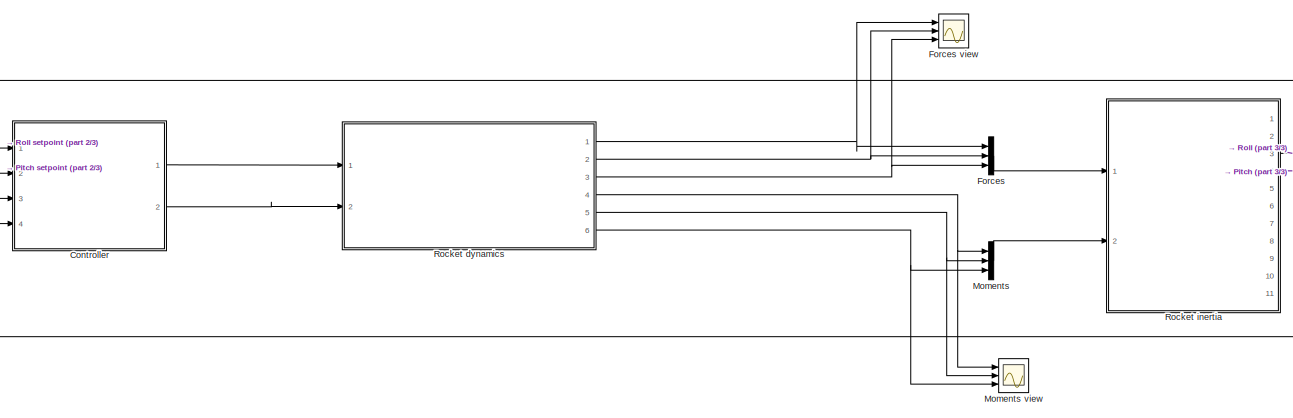
[diagram: root canvas - part 1/3, center side, full height]
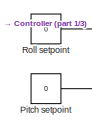
[diagram: root canvas - part 2/3, middle left region]
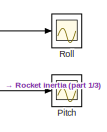
[diagram: root canvas - part 3/3, middle right region]
MODEL slx_205edbc6a3b7
KIND model
CONFIG AbsTol = auto
CONFIG EnableMultiTasking = off
CONFIG FixedStep = auto
CONFIG MaxStep = auto
CONFIG MinStep = auto
CONFIG RelTol = 1e-3
CONFIG SampleTimeConstraint = Unconstrained
CONFIG SolverName = VariableStepAuto
CONFIG StartTime = 0.0
CONFIG StopTime = 10.0
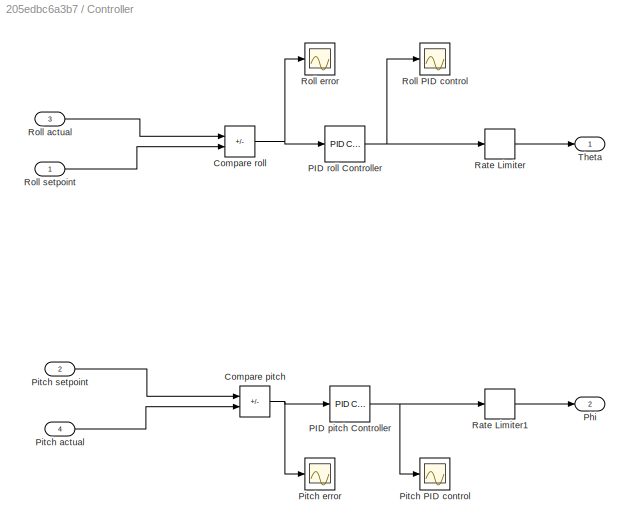
BLOCK [SubSystem] Controller
  Ports = [4, 2]
  RequestExecContextInheritance = off
BLOCK [Sum] Controller/Compare pitch
  IconShape = rectangular
  Inputs = +-
  Ports = [2, 1]
BLOCK [Sum] Controller/Compare roll
  IconShape = rectangular
  Inputs = +-
  Ports = [2, 1]
BLOCK [Reference] Controller/PID pitch Controller  REF=pid_lib/PID Controller
  Ports = [1, 1]
  SourceBlock = pid_lib/PID Controller
  SourceProductBaseCode = SL
  SourceType = PID 1dof
BLOCK [Reference] Controller/PID roll Controller  REF=pid_lib/PID Controller
  Ports = [1, 1]
  SourceBlock = pid_lib/PID Controller
  SourceProductBaseCode = SL
  SourceType = PID 1dof
BLOCK [Outport] Controller/Phi
  Port = 2
BLOCK [Scope] Controller/Pitch PID control
  Floating = off
  NumInputPorts = 1
  Ports = [1]
  ScopeSpecificationString = Simulink.scopes.TimeScopeBlockCfg('CurrentConfiguration', extmgr.ConfigurationSet(extmgr.Configuration('Core','General UI',true),extmgr.Configuration('Core','Source UI',true),extmgr.Configuration('Sources','WiredSimulink',true,'DataLoggingVariableName','ScopeData4'),extmgr.Configuration('Visuals','Time Domain',true,'SerializedDisplays',{struct('MinYLimReal','-0.58531','MaxYLimReal','0.07842','YLab...<+1410ch>
BLOCK [Inport] Controller/Pitch actual
  Port = 4
BLOCK [Scope] Controller/Pitch error
  Floating = off
  NumInputPorts = 1
  Ports = [1]
  ScopeSpecificationString = Simulink.scopes.TimeScopeBlockCfg('CurrentConfiguration', extmgr.ConfigurationSet(extmgr.Configuration('Core','General UI',true),extmgr.Configuration('Core','Source UI',true),extmgr.Configuration('Sources','WiredSimulink',true,'DataLoggingVariableName','ScopeData2'),extmgr.Configuration('Visuals','Time Domain',true,'SerializedDisplays',{struct('MinYLimReal','-0.0968','MaxYLimReal','0.03418','YLabe...<+1399ch>
BLOCK [Inport] Controller/Pitch setpoint
  Port = 2
BLOCK [RateLimiter] Controller/Rate Limiter
  FallingSlewLimit = -500
  RisingSlewLimit = 500
  SampleTimeMode = inherited
BLOCK [RateLimiter] Controller/Rate Limiter1
  FallingSlewLimit = -500
  RisingSlewLimit = 500
  SampleTimeMode = inherited
BLOCK [Scope] Controller/Roll PID control
  Floating = off
  NumInputPorts = 1
  Ports = [1]
  ScopeSpecificationString = Simulink.scopes.TimeScopeBlockCfg('CurrentConfiguration', extmgr.ConfigurationSet(extmgr.Configuration('Core','General UI',true),extmgr.Configuration('Core','Source UI',true),extmgr.Configuration('Sources','WiredSimulink',true,'DataLoggingVariableName','ScopeData3'),extmgr.Configuration('Visuals','Time Domain',true,'SerializedDisplays',{struct('MinYLimReal','-22.84111','MaxYLimReal','10.79129','YL...<+1465ch>
BLOCK [Inport] Controller/Roll actual
  Port = 3
BLOCK [Scope] Controller/Roll error
  Floating = off
  NumInputPorts = 1
  Ports = [1]
  ScopeSpecificationString = Simulink.scopes.TimeScopeBlockCfg('CurrentConfiguration', extmgr.ConfigurationSet(extmgr.Configuration('Core','General UI',true),extmgr.Configuration('Core','Source UI',true),extmgr.Configuration('Sources','WiredSimulink',true,'DataLoggingVariableName','ScopeData1'),extmgr.Configuration('Visuals','Time Domain',true,'SerializedDisplays',{struct('MinYLimReal','-3.53429','MaxYLimReal','0.3927','YLabe...<+1450ch>
BLOCK [Inport] Controller/Roll setpoint
BLOCK [Outport] Controller/Theta
BLOCK [Mux] Forces
  DisplayOption = bar
  Inputs = 3
  Ports = [3, 1]
BLOCK [Scope] Forces view
  Floating = off
  NumInputPorts = 3
  Ports = [3]
  ScopeSpecificationString = Simulink.scopes.TimeScopeBlockCfg('CurrentConfiguration', extmgr.ConfigurationSet(extmgr.Configuration('Core','General UI',true),extmgr.Configuration('Core','Source UI',true),extmgr.Configuration('Sources','WiredSimulink',true,'DataLoggingVariableName','ScopeData5'),extmgr.Configuration('Visuals','Time Domain',true,'SerializedDisplays',{struct('MinYLimReal','-7.64555','MaxYLimReal','17.51617','YLa...<+1788ch>
BLOCK [Mux] Moments
  DisplayOption = bar
  Inputs = 3
  Ports = [3, 1]
BLOCK [Scope] Moments view
  Floating = off
  NumInputPorts = 3
  Ports = [3]
  ScopeSpecificationString = Simulink.scopes.TimeScopeBlockCfg('CurrentConfiguration', extmgr.ConfigurationSet(extmgr.Configuration('Core','General UI',true),extmgr.Configuration('Core','Source UI',true),extmgr.Configuration('Sources','WiredSimulink',true,'DataLoggingVariableName','ScopeData6'),extmgr.Configuration('Visuals','Time Domain',true,'SerializedDisplays',{struct('MinYLimReal','-2.92054','MaxYLimReal','0.63796','YLab...<+1829ch>
BLOCK [Scope] Pitch
  Floating = off
  NumInputPorts = 1
  Ports = [1]
  ScopeSpecificationString = Simulink.scopes.TimeScopeBlockCfg('CurrentConfiguration', extmgr.ConfigurationSet(extmgr.Configuration('Core','General UI',true),extmgr.Configuration('Core','Source UI',true),extmgr.Configuration('Sources','WiredSimulink',true,'DataLoggingVariableName','ScopeData1'),extmgr.Configuration('Visuals','Time Domain',true,'SerializedDisplays',{struct('MinYLimReal','-0.0342','MaxYLimReal','0.0968','YLabel...<+1400ch>
BLOCK [Constant] Pitch setpoint
  Value = 0
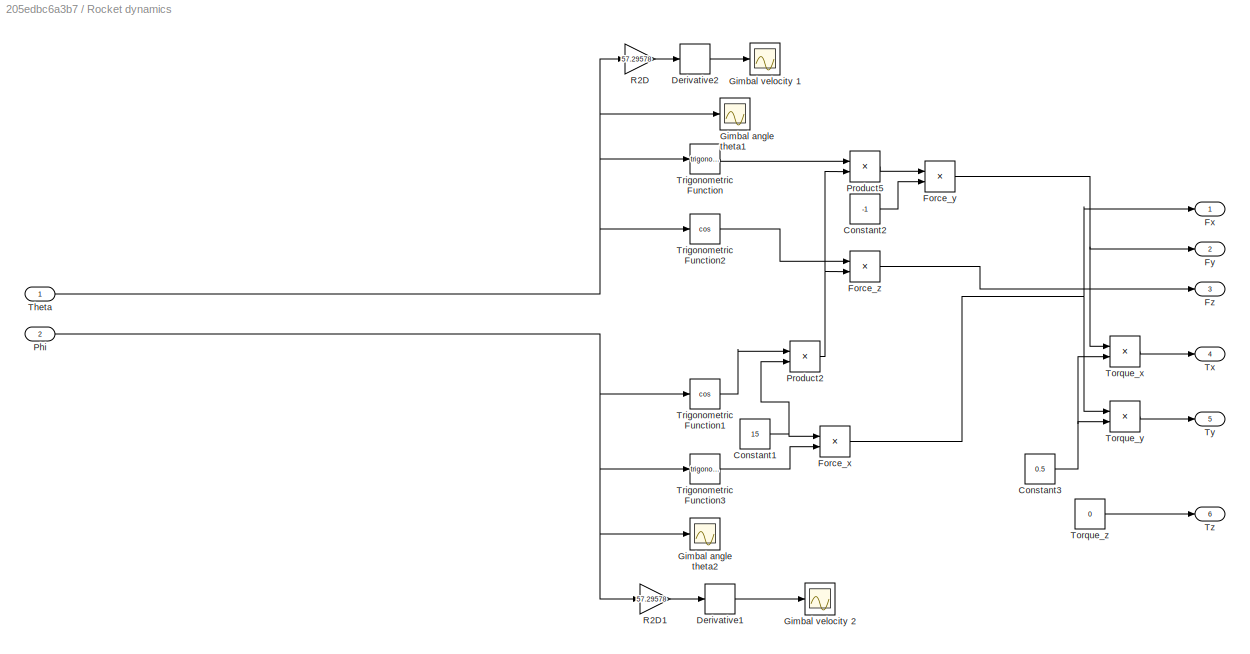
BLOCK [SubSystem] Rocket dynamics
  Ports = [2, 6]
  RequestExecContextInheritance = off
BLOCK [Constant] Rocket dynamics/Constant1
  Value = 15
BLOCK [Constant] Rocket dynamics/Constant2
  Value = -1
BLOCK [Constant] Rocket dynamics/Constant3
  Value = 0.5
BLOCK [Derivative] Rocket dynamics/Derivative1
BLOCK [Derivative] Rocket dynamics/Derivative2
BLOCK [Product] Rocket dynamics/Force_x
  Ports = [2, 1]
BLOCK [Product] Rocket dynamics/Force_y
  Ports = [2, 1]
BLOCK [Product] Rocket dynamics/Force_z
  Ports = [2, 1]
BLOCK [Outport] Rocket dynamics/Fx
BLOCK [Outport] Rocket dynamics/Fy
  Port = 2
BLOCK [Outport] Rocket dynamics/Fz
  Port = 3
BLOCK [Scope] Rocket dynamics/Gimbal angle theta1
  Floating = off
  NumInputPorts = 1
  Ports = [1]
  ScopeSpecificationString = Simulink.scopes.TimeScopeBlockCfg('CurrentConfiguration', extmgr.ConfigurationSet(extmgr.Configuration('Core','General UI',true),extmgr.Configuration('Core','Source UI',true),extmgr.Configuration('Sources','WiredSimulink',true,'DataLoggingVariableName','ScopeData2'),extmgr.Configuration('Visuals','Time Domain',true,'SerializedDisplays',{struct('MinYLimReal','-0.43625','MaxYLimReal','0.43625','YLab...<+1453ch>
BLOCK [Scope] Rocket dynamics/Gimbal angle theta2
  Floating = off
  NumInputPorts = 1
  Ports = [1]
  ScopeSpecificationString = Simulink.scopes.TimeScopeBlockCfg('CurrentConfiguration', extmgr.ConfigurationSet(extmgr.Configuration('Core','General UI',true),extmgr.Configuration('Core','Source UI',true),extmgr.Configuration('Sources','WiredSimulink',true,'DataLoggingVariableName','ScopeData3'),extmgr.Configuration('Visuals','Time Domain',true,'SerializedDisplays',{struct('MinYLimReal','-0.39413','MaxYLimReal','0.05718','YLab...<+1366ch>
BLOCK [Scope] Rocket dynamics/Gimbal velocity 1
  Floating = off
  NumInputPorts = 1
  Ports = [1]
  ScopeSpecificationString = Simulink.scopes.TimeScopeBlockCfg('CurrentConfiguration', extmgr.ConfigurationSet(extmgr.Configuration('Core','General UI',true),extmgr.Configuration('Core','Source UI',true),extmgr.Configuration('Sources','WiredSimulink',true,'DataLoggingVariableName','ScopeData7'),extmgr.Configuration('Visuals','Time Domain',true,'SerializedDisplays',{struct('MinYLimReal','-3761.43334','MaxYLimReal','22487.8052'...<+1464ch>
BLOCK [Scope] Rocket dynamics/Gimbal velocity 2
  Floating = off
  NumInputPorts = 1
  Ports = [1]
  ScopeSpecificationString = Simulink.scopes.TimeScopeBlockCfg('CurrentConfiguration', extmgr.ConfigurationSet(extmgr.Configuration('Core','General UI',true),extmgr.Configuration('Core','Source UI',true),extmgr.Configuration('Sources','WiredSimulink',true,'DataLoggingVariableName','ScopeData1'),extmgr.Configuration('Visuals','Time Domain',true,'SerializedDisplays',{struct('MinYLimReal','-22523.9109','MaxYLimReal','4086.38461'...<+1466ch>
BLOCK [Inport] Rocket dynamics/Phi
  Port = 2
BLOCK [Product] Rocket dynamics/Product2
  Ports = [2, 1]
BLOCK [Product] Rocket dynamics/Product5
  Ports = [2, 1]
BLOCK [Gain] Rocket dynamics/R2D
  Gain = 57.29578
BLOCK [Gain] Rocket dynamics/R2D1
  Gain = 57.29578
BLOCK [Inport] Rocket dynamics/Theta
BLOCK [Product] Rocket dynamics/Torque_x
  Ports = [2, 1]
BLOCK [Product] Rocket dynamics/Torque_y
  Ports = [2, 1]
BLOCK [Constant] Rocket dynamics/Torque_z
  Value = 0
BLOCK [Trigonometry] Rocket dynamics/Trigonometric Function
  Ports = [1, 1]
BLOCK [Trigonometry] Rocket dynamics/Trigonometric Function1
  Operator = cos
  Ports = [1, 1]
BLOCK [Trigonometry] Rocket dynamics/Trigonometric Function2
  Operator = cos
  Ports = [1, 1]
BLOCK [Trigonometry] Rocket dynamics/Trigonometric Function3
  Ports = [1, 1]
BLOCK [Outport] Rocket dynamics/Tx
  Port = 4
BLOCK [Outport] Rocket dynamics/Ty
  Port = 5
BLOCK [Outport] Rocket dynamics/Tz
  Port = 6
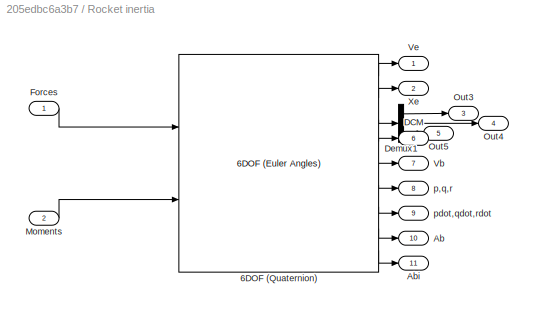
BLOCK [SubSystem] Rocket inertia
  Ports = [2, 11]
  RequestExecContextInheritance = off
BLOCK [Reference] Rocket inertia/6DOF (Quaternion)  REF=shared6dof/6DOF (Euler Angles)
  Ports = [2, 9]
  SourceBlock = shared6dof/6DOF (Euler Angles)
  SourceProductBaseCode = AE,PW,MT,UV,VE,VP
  SourceType = 6DOF EoM (Body Axis)
BLOCK [Outport] Rocket inertia/Ab
  Port = 10
BLOCK [Outport] Rocket inertia/Abi
  Port = 11
BLOCK [Outport] Rocket inertia/DCM
  Port = 6
BLOCK [Demux] Rocket inertia/Demux1
  Outputs = 3
  Ports = [1, 3]
BLOCK [Inport] Rocket inertia/Forces
BLOCK [Inport] Rocket inertia/Moments
  Port = 2
BLOCK [Outport] Rocket inertia/Out3
  Port = 3
BLOCK [Outport] Rocket inertia/Out4
  Port = 4
BLOCK [Outport] Rocket inertia/Out5
  Port = 5
BLOCK [Outport] Rocket inertia/Vb
  Port = 7
BLOCK [Outport] Rocket inertia/Ve
BLOCK [Outport] Rocket inertia/Xe
  Port = 2
BLOCK [Outport] Rocket inertia/p,q,r
  Port = 8
BLOCK [Outport] Rocket inertia/pdot,qdot,rdot
  Port = 9
BLOCK [Scope] Roll
  Floating = off
  NumInputPorts = 1
  Ports = [1]
  ScopeSpecificationString = Simulink.scopes.TimeScopeBlockCfg('CurrentConfiguration', extmgr.ConfigurationSet(extmgr.Configuration('Core','General UI',true),extmgr.Configuration('Core','Source UI',true),extmgr.Configuration('Sources','WiredSimulink',true),extmgr.Configuration('Visuals','Time Domain',true,'SerializedDisplays',{struct('MinYLimReal','-0.14763','MaxYLimReal','0.79196','YLabelReal','','MinYLimMag','0.00000','MaxY...<+1394ch>
BLOCK [Constant] Roll setpoint
  Value = 0
NET Controller/Compare pitch:1 -> Controller/PID pitch Controller:1, Controller/Pitch error:1
NET Controller/Compare roll:1 -> Controller/PID roll Controller:1, Controller/Roll error:1
NET Controller/PID pitch Controller:1 -> Controller/Pitch PID control:1, Controller/Rate Limiter1:1
NET Controller/PID roll Controller:1 -> Controller/Rate Limiter:1, Controller/Roll PID control:1
LINE Controller/Pitch actual:1 -> Controller/Compare pitch:2
LINE Controller/Pitch setpoint:1 -> Controller/Compare pitch:1
LINE Controller/Rate Limiter1:1 -> Controller/Phi:1
LINE Controller/Rate Limiter:1 -> Controller/Theta:1
LINE Controller/Roll actual:1 -> Controller/Compare roll:1
LINE Controller/Roll setpoint:1 -> Controller/Compare roll:2
LINE Controller:1 -> Rocket dynamics:1
LINE Controller:2 -> Rocket dynamics:2
LINE Forces:1 -> Rocket inertia:1
LINE Moments:1 -> Rocket inertia:2
LINE Pitch setpoint:1 -> Controller:2
NET Rocket dynamics/Constant1:1 -> Rocket dynamics/Force_x:1, Rocket dynamics/Product2:2
LINE Rocket dynamics/Constant2:1 -> Rocket dynamics/Force_y:2
NET Rocket dynamics/Constant3:1 -> Rocket dynamics/Torque_x:2, Rocket dynamics/Torque_y:2
LINE Rocket dynamics/Derivative1:1 -> Rocket dynamics/Gimbal velocity 2:1
LINE Rocket dynamics/Derivative2:1 -> Rocket dynamics/Gimbal velocity 1:1
NET Rocket dynamics/Force_x:1 -> Rocket dynamics/Fx:1, Rocket dynamics/Torque_y:1
NET Rocket dynamics/Force_y:1 -> Rocket dynamics/Fy:1, Rocket dynamics/Torque_x:1
LINE Rocket dynamics/Force_z:1 -> Rocket dynamics/Fz:1
NET Rocket dynamics/Phi:1 -> Rocket dynamics/Gimbal angle theta2:1, Rocket dynamics/R2D1:1, Rocket dynamics/Trigonometric Function1:1, Rocket dynamics/Trigonometric Function3:1
NET Rocket dynamics/Product2:1 -> Rocket dynamics/Force_z:2, Rocket dynamics/Product5:2
LINE Rocket dynamics/Product5:1 -> Rocket dynamics/Force_y:1
LINE Rocket dynamics/R2D1:1 -> Rocket dynamics/Derivative1:1
LINE Rocket dynamics/R2D:1 -> Rocket dynamics/Derivative2:1
NET Rocket dynamics/Theta:1 -> Rocket dynamics/Gimbal angle theta1:1, Rocket dynamics/R2D:1, Rocket dynamics/Trigonometric Function2:1, Rocket dynamics/Trigonometric Function:1
LINE Rocket dynamics/Torque_x:1 -> Rocket dynamics/Tx:1
LINE Rocket dynamics/Torque_y:1 -> Rocket dynamics/Ty:1
LINE Rocket dynamics/Torque_z:1 -> Rocket dynamics/Tz:1
LINE Rocket dynamics/Trigonometric Function1:1 -> Rocket dynamics/Product2:1
LINE Rocket dynamics/Trigonometric Function2:1 -> Rocket dynamics/Force_z:1
LINE Rocket dynamics/Trigonometric Function3:1 -> Rocket dynamics/Force_x:2
LINE Rocket dynamics/Trigonometric Function:1 -> Rocket dynamics/Product5:1
NET Rocket dynamics:1 -> Forces view:1, Forces:1
NET Rocket dynamics:2 -> Forces view:2, Forces:2
NET Rocket dynamics:3 -> Forces view:3, Forces:3
NET Rocket dynamics:4 -> Moments view:1, Moments:1
NET Rocket dynamics:5 -> Moments view:2, Moments:2
NET Rocket dynamics:6 -> Moments view:3, Moments:3
LINE Rocket inertia/6DOF (Quaternion):1 -> Rocket inertia/Ve:1
LINE Rocket inertia/6DOF (Quaternion):2 -> Rocket inertia/Xe:1
LINE Rocket inertia/6DOF (Quaternion):3 -> Rocket inertia/Demux1:1
LINE Rocket inertia/6DOF (Quaternion):4 -> Rocket inertia/DCM:1
LINE Rocket inertia/6DOF (Quaternion):5 -> Rocket inertia/Vb:1
LINE Rocket inertia/6DOF (Quaternion):6 -> Rocket inertia/p,q,r:1
LINE Rocket inertia/6DOF (Quaternion):7 -> Rocket inertia/pdot,qdot,rdot:1
LINE Rocket inertia/6DOF (Quaternion):8 -> Rocket inertia/Ab:1
LINE Rocket inertia/6DOF (Quaternion):9 -> Rocket inertia/Abi:1
LINE Rocket inertia/Demux1:1 -> Rocket inertia/Out3:1
LINE Rocket inertia/Demux1:2 -> Rocket inertia/Out4:1
LINE Rocket inertia/Demux1:3 -> Rocket inertia/Out5:1
LINE Rocket inertia/Forces:1 -> Rocket inertia/6DOF (Quaternion):1
LINE Rocket inertia/Moments:1 -> Rocket inertia/6DOF (Quaternion):2
NET Rocket inertia:3 -> Controller:3, Roll:1
NET Rocket inertia:4 -> Controller:4, Pitch:1
LINE Roll setpoint:1 -> Controller:1
note: NET lines group one-source signal fan-out (src -> all destinations, sorted); 1:1 wires keep LINE
